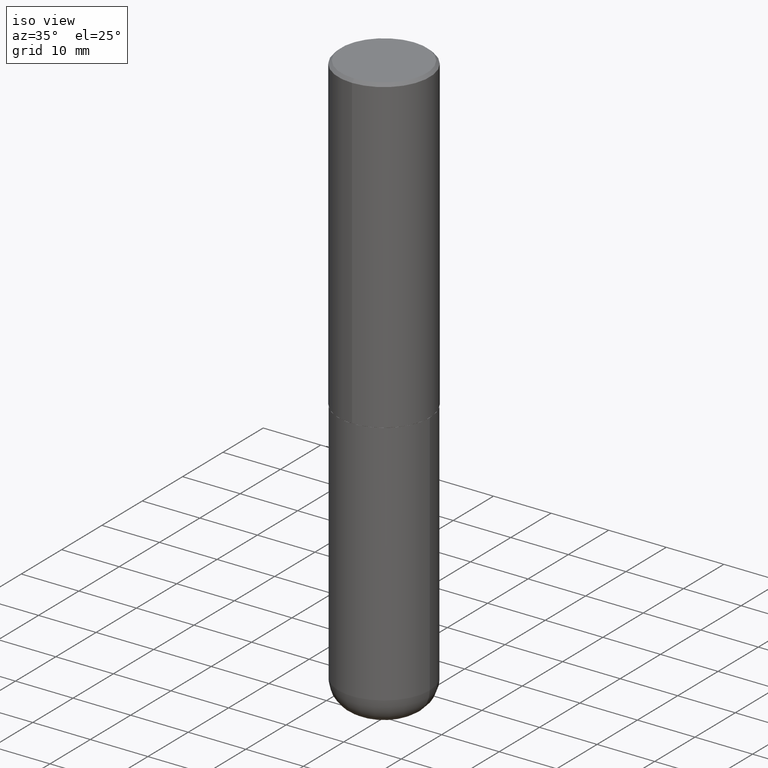
[diagram: clean part render]
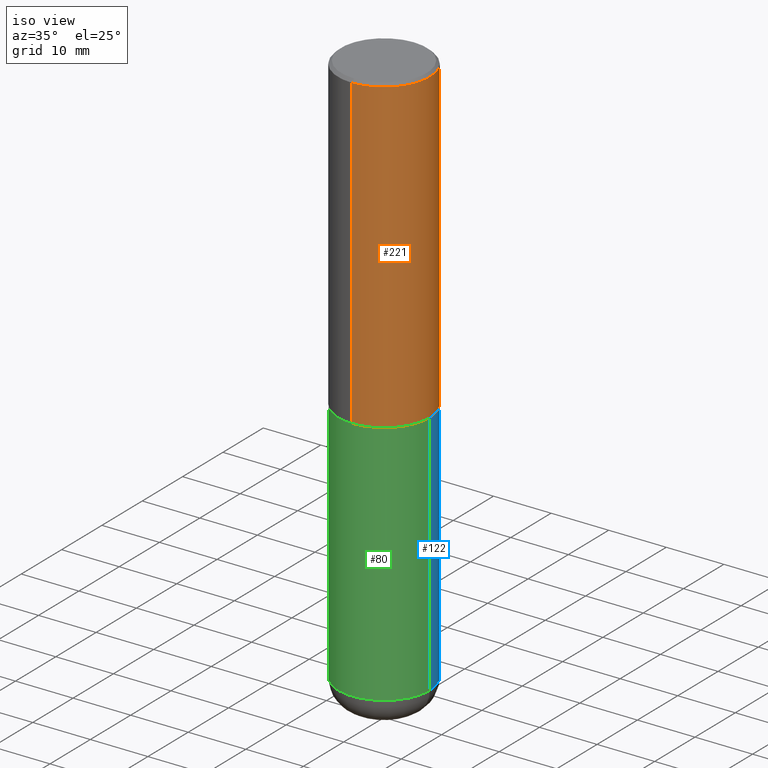
[diagram: same view with three faces highlighted in distinct colors, each labeled with its STEP entity id]
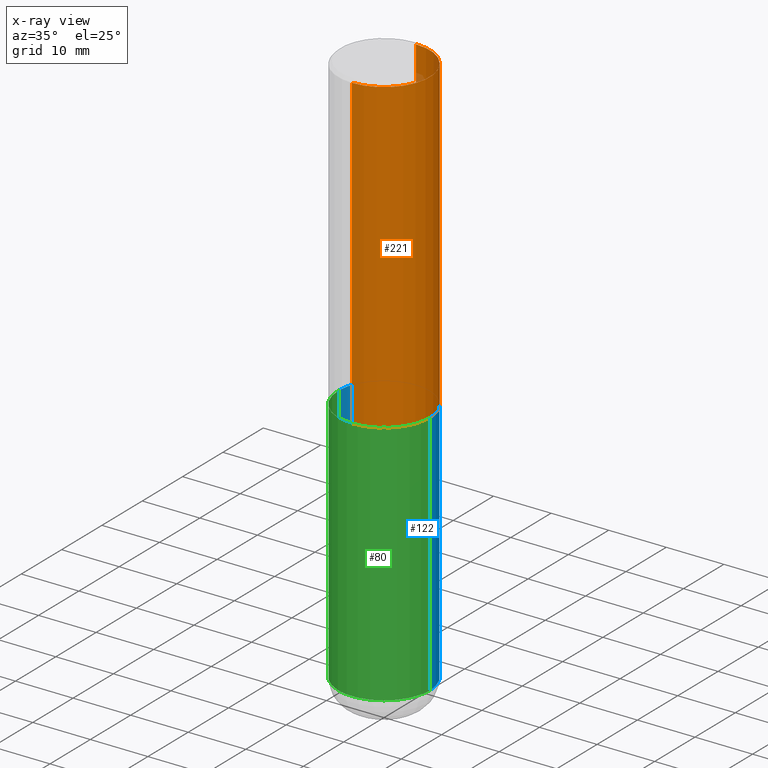
[diagram: x-ray of the same camera — body ghosted, the three highlighted faces saturated]
A machine part, iso view with three faces highlighted in distinct colors.
The next image is the same camera in x-ray (body ghosted, the three faces saturated) — at least one of them is partly hidden behind the body in this view.
Their STEP definitions:

[orange] entity #221 — the highlighted cylindrical surface (partial cylindrical patch) has radius 7.9375 mm, axis along (-0, 0, 1).
#9 = DIRECTION ( 'NONE',  ( -6.982962677686265133E-15, -1.000000000000000000, 3.492364022149836358E-15 ) ) ;
#15 = ORIENTED_EDGE ( 'NONE', *, *, #380, .F. ) ;
#20 = CARTESIAN_POINT ( 'NONE',  ( -2.143905624303602824E-15, -0.3125000000000000555, -0.01999999999999897693 ) ) ;
#39 = FACE_OUTER_BOUND ( 'NONE', #64, .T. ) ;
#60 = EDGE_CURVE ( 'NONE', #394, #68, #362, .T. ) ;
#63 = CIRCLE ( 'NONE', #128, 0.3125000000000000000 ) ;
#64 = EDGE_LOOP ( 'NONE', ( #65, #274, #15, #247 ) ) ;
#65 = ORIENTED_EDGE ( 'NONE', *, *, #134, .T. ) ;
#66 = DIRECTION ( 'NONE',  ( -6.982962677686265133E-15, -1.000000000000000000, 3.496765431890256920E-15 ) ) ;
#68 = VERTEX_POINT ( 'NONE', #20 ) ;
#69 = CARTESIAN_POINT ( 'NONE',  ( 2.220446049250340297E-15, 0.3124999999999928391, -2.124000000000000554 ) ) ;
#72 = DIRECTION ( 'NONE',  ( -2.444852431726452894E-29, 3.492364022149836358E-15, 1.000000000000000000 ) ) ;
#99 = DIRECTION ( 'NONE',  ( -2.444852431726452894E-29, 3.492364022149836358E-15, 1.000000000000000000 ) ) ;
#106 = CARTESIAN_POINT ( 'NONE',  ( 0.000000000000000000, 0.000000000000000000, 0.000000000000000000 ) ) ;
#127 = AXIS2_PLACEMENT_3D ( 'NONE', #129, #99, #219 ) ;
#128 = AXIS2_PLACEMENT_3D ( 'NONE', #161, #292, #66 ) ;
#129 = CARTESIAN_POINT ( 'NONE',  ( 5.192866564986985411E-29, -7.417781183046251262E-15, -2.123999999999999666 ) ) ;
#134 = EDGE_CURVE ( 'NONE', #394, #411, #242, .T. ) ;
#161 = CARTESIAN_POINT ( 'NONE',  ( 4.889704863452922148E-31, -6.984728044299695791E-17, -0.02000000000000006981 ) ) ;
#170 = LINE ( 'NONE', #270, #373 ) ;
#215 = VERTEX_POINT ( 'NONE', #232 ) ;
#219 = DIRECTION ( 'NONE',  ( -6.982962677686265922E-15, -1.000000000000000000, 3.496765431890253764E-15 ) ) ;
#221 = ADVANCED_FACE ( 'NONE', ( #39 ), #365, .T. ) ;
#226 = CARTESIAN_POINT ( 'NONE',  ( -2.182175836776908254E-15, -0.3125000000000077161, -2.123999999999998334 ) ) ;
#232 = CARTESIAN_POINT ( 'NONE',  ( 2.182175836776958741E-15, 0.3124999999999999445, -0.02000000000000116268 ) ) ;
#242 = CIRCLE ( 'NONE', #127, 0.3125000000000002776 ) ;
#247 = ORIENTED_EDGE ( 'NONE', *, *, #60, .F. ) ;
#251 = VECTOR ( 'NONE', #381, 39.37007874015748143 ) ;
#263 = EDGE_CURVE ( 'NONE', #411, #215, #170, .T. ) ;
#270 = CARTESIAN_POINT ( 'NONE',  ( 2.220446049250313475E-15, 0.3125000000000001665, -1.091363756921824478E-15 ) ) ;
#274 = ORIENTED_EDGE ( 'NONE', *, *, #263, .T. ) ;
#292 = DIRECTION ( 'NONE',  ( -2.444852431726452894E-29, 3.492364022149836358E-15, 1.000000000000000000 ) ) ;
#351 = CARTESIAN_POINT ( 'NONE',  ( -2.182175836776959136E-15, -0.3125000000000001665, 1.091363756921824478E-15 ) ) ;
#362 = LINE ( 'NONE', #351, #251 ) ;
#365 = CYLINDRICAL_SURFACE ( 'NONE', #389, 0.3125000000000001665 ) ;
#373 = VECTOR ( 'NONE', #398, 39.37007874015748143 ) ;
#380 = EDGE_CURVE ( 'NONE', #68, #215, #63, .T. ) ;
#381 = DIRECTION ( 'NONE',  ( -2.444852431726452614E-29, 3.492364022149836358E-15, 1.000000000000000000 ) ) ;
#389 = AXIS2_PLACEMENT_3D ( 'NONE', #106, #72, #9 ) ;
#394 = VERTEX_POINT ( 'NONE', #226 ) ;
#398 = DIRECTION ( 'NONE',  ( -2.444852431726452614E-29, 3.492364022149836358E-15, 1.000000000000000000 ) ) ;
#411 = VERTEX_POINT ( 'NONE', #69 ) ;

[blue] entity #122 — the highlighted cylindrical surface (partial cylindrical patch) has radius 7.9375 mm, axis along (-0, 0, 1).
#4 = AXIS2_PLACEMENT_3D ( 'NONE', #358, #258, #253 ) ;
#5 = EDGE_CURVE ( 'NONE', #287, #154, #342, .T. ) ;
#30 = DIRECTION ( 'NONE',  ( 1.000000000000000000, -6.982962677686269077E-15, 0.000000000000000000 ) ) ;
#33 = ORIENTED_EDGE ( 'NONE', *, *, #302, .F. ) ;
#52 = VECTOR ( 'NONE', #146, 39.37007874015748143 ) ;
#61 = DIRECTION ( 'NONE',  ( 1.000000000000000000, -6.982962677686266711E-15, 4.876176775795936353E-29 ) ) ;
#82 = CARTESIAN_POINT ( 'NONE',  ( 0.3125000000000000000, -9.601573681818640393E-15, -2.124999999999999556 ) ) ;
#98 = CARTESIAN_POINT ( 'NONE',  ( -0.3124999999999998890, -1.108209785174207265E-14, -3.810000000000000053 ) ) ;
#102 = EDGE_CURVE ( 'NONE', #383, #154, #405, .T. ) ;
#117 = CYLINDRICAL_SURFACE ( 'NONE', #309, 0.3125000000000000000 ) ;
#121 = DIRECTION ( 'NONE',  ( -2.445468806185136597E-29, 3.491481338843145583E-15, 1.000000000000000000 ) ) ;
#122 = ADVANCED_FACE ( 'NONE', ( #413 ), #117, .T. ) ;
#124 = DIRECTION ( 'NONE',  ( -2.445468806185136877E-29, 3.491481338843145188E-15, 1.000000000000000000 ) ) ;
#125 = EDGE_LOOP ( 'NONE', ( #278, #382, #196, #33 ) ) ;
#138 = EDGE_CURVE ( 'NONE', #173, #383, #141, .T. ) ;
#141 = CIRCLE ( 'NONE', #379, 0.3125000000000000000 ) ;
#146 = DIRECTION ( 'NONE',  ( -2.445468806185136877E-29, 3.491481338843145188E-15, 1.000000000000000000 ) ) ;
#154 = VERTEX_POINT ( 'NONE', #293 ) ;
#173 = VERTEX_POINT ( 'NONE', #252 ) ;
#174 = LINE ( 'NONE', #308, #52 ) ;
#185 = CARTESIAN_POINT ( 'NONE',  ( -0.3125000000000000000, 2.220446049250313081E-15, -1.537167215704658232E-29 ) ) ;
#196 = ORIENTED_EDGE ( 'NONE', *, *, #5, .F. ) ;
#218 = CARTESIAN_POINT ( 'NONE',  ( 9.317236151565370389E-29, -1.330254390099238573E-14, -3.810000000000000053 ) ) ;
#228 = VECTOR ( 'NONE', #124, 39.37007874015748143 ) ;
#252 = CARTESIAN_POINT ( 'NONE',  ( 0.3124999999999998890, -1.548471973776934408E-14, -3.810000000000000053 ) ) ;
#253 = DIRECTION ( 'NONE',  ( 1.000000000000000000, -6.982962677686265133E-15, 0.000000000000000000 ) ) ;
#258 = DIRECTION ( 'NONE',  ( -2.445468806185136597E-29, 3.491481338843145583E-15, 1.000000000000000000 ) ) ;
#278 = ORIENTED_EDGE ( 'NONE', *, *, #138, .T. ) ;
#287 = VERTEX_POINT ( 'NONE', #82 ) ;
#293 = CARTESIAN_POINT ( 'NONE',  ( -0.3125000000000000000, -8.140524823766720019E-15, -2.124999999999999556 ) ) ;
#302 = EDGE_CURVE ( 'NONE', #173, #287, #174, .T. ) ;
#308 = CARTESIAN_POINT ( 'NONE',  ( 0.3125000000000000000, -2.182175836776958347E-15, 1.523805242436230075E-29 ) ) ;
#309 = AXIS2_PLACEMENT_3D ( 'NONE', #378, #387, #61 ) ;
#342 = CIRCLE ( 'NONE', #4, 0.3125000000000000000 ) ;
#358 = CARTESIAN_POINT ( 'NONE',  ( 5.196621213143414147E-29, -7.419397845041682046E-15, -2.124999999999999556 ) ) ;
#378 = CARTESIAN_POINT ( 'NONE',  ( 0.000000000000000000, 0.000000000000000000, 0.000000000000000000 ) ) ;
#379 = AXIS2_PLACEMENT_3D ( 'NONE', #218, #121, #30 ) ;
#382 = ORIENTED_EDGE ( 'NONE', *, *, #102, .T. ) ;
#383 = VERTEX_POINT ( 'NONE', #98 ) ;
#387 = DIRECTION ( 'NONE',  ( -2.445468806185136597E-29, 3.491481338843145583E-15, 1.000000000000000000 ) ) ;
#405 = LINE ( 'NONE', #185, #228 ) ;
#413 = FACE_OUTER_BOUND ( 'NONE', #125, .T. ) ;

[green] entity #80 — the highlighted cylindrical surface (partial cylindrical patch) has radius 7.9375 mm, axis along (-0, 0, 1).
#2 = EDGE_CURVE ( 'NONE', #383, #173, #401, .T. ) ;
#13 = CIRCLE ( 'NONE', #105, 0.3125000000000000000 ) ;
#27 = DIRECTION ( 'NONE',  ( -2.445468806185136597E-29, 3.491481338843145583E-15, 1.000000000000000000 ) ) ;
#34 = ORIENTED_EDGE ( 'NONE', *, *, #2, .T. ) ;
#52 = VECTOR ( 'NONE', #146, 39.37007874015748143 ) ;
#58 = DIRECTION ( 'NONE',  ( -2.445468806185136597E-29, 3.491481338843145583E-15, 1.000000000000000000 ) ) ;
#80 = ADVANCED_FACE ( 'NONE', ( #316 ), #295, .T. ) ;
#81 = ORIENTED_EDGE ( 'NONE', *, *, #102, .F. ) ;
#82 = CARTESIAN_POINT ( 'NONE',  ( 0.3125000000000000000, -9.601573681818640393E-15, -2.124999999999999556 ) ) ;
#98 = CARTESIAN_POINT ( 'NONE',  ( -0.3124999999999998890, -1.108209785174207265E-14, -3.810000000000000053 ) ) ;
#102 = EDGE_CURVE ( 'NONE', #383, #154, #405, .T. ) ;
#105 = AXIS2_PLACEMENT_3D ( 'NONE', #289, #288, #415 ) ;
#124 = DIRECTION ( 'NONE',  ( -2.445468806185136877E-29, 3.491481338843145188E-15, 1.000000000000000000 ) ) ;
#146 = DIRECTION ( 'NONE',  ( -2.445468806185136877E-29, 3.491481338843145188E-15, 1.000000000000000000 ) ) ;
#154 = VERTEX_POINT ( 'NONE', #293 ) ;
#173 = VERTEX_POINT ( 'NONE', #252 ) ;
#174 = LINE ( 'NONE', #308, #52 ) ;
#185 = CARTESIAN_POINT ( 'NONE',  ( -0.3125000000000000000, 2.220446049250313081E-15, -1.537167215704658232E-29 ) ) ;
#192 = CARTESIAN_POINT ( 'NONE',  ( 9.317236151565370389E-29, -1.330254390099238573E-14, -3.810000000000000053 ) ) ;
#227 = DIRECTION ( 'NONE',  ( 1.000000000000000000, -6.982962677686266711E-15, 4.876176775795936353E-29 ) ) ;
#228 = VECTOR ( 'NONE', #124, 39.37007874015748143 ) ;
#249 = EDGE_LOOP ( 'NONE', ( #81, #34, #377, #346 ) ) ;
#252 = CARTESIAN_POINT ( 'NONE',  ( 0.3124999999999998890, -1.548471973776934408E-14, -3.810000000000000053 ) ) ;
#281 = CARTESIAN_POINT ( 'NONE',  ( 0.000000000000000000, 0.000000000000000000, 0.000000000000000000 ) ) ;
#284 = AXIS2_PLACEMENT_3D ( 'NONE', #192, #58, #349 ) ;
#287 = VERTEX_POINT ( 'NONE', #82 ) ;
#288 = DIRECTION ( 'NONE',  ( -2.445468806185136597E-29, 3.491481338843145583E-15, 1.000000000000000000 ) ) ;
#289 = CARTESIAN_POINT ( 'NONE',  ( 5.196621213143414147E-29, -7.419397845041682046E-15, -2.124999999999999556 ) ) ;
#293 = CARTESIAN_POINT ( 'NONE',  ( -0.3125000000000000000, -8.140524823766720019E-15, -2.124999999999999556 ) ) ;
#295 = CYLINDRICAL_SURFACE ( 'NONE', #324, 0.3125000000000000000 ) ;
#302 = EDGE_CURVE ( 'NONE', #173, #287, #174, .T. ) ;
#308 = CARTESIAN_POINT ( 'NONE',  ( 0.3125000000000000000, -2.182175836776958347E-15, 1.523805242436230075E-29 ) ) ;
#316 = FACE_OUTER_BOUND ( 'NONE', #249, .T. ) ;
#324 = AXIS2_PLACEMENT_3D ( 'NONE', #281, #27, #227 ) ;
#346 = ORIENTED_EDGE ( 'NONE', *, *, #367, .F. ) ;
#349 = DIRECTION ( 'NONE',  ( 1.000000000000000000, -6.982962677686269077E-15, 0.000000000000000000 ) ) ;
#367 = EDGE_CURVE ( 'NONE', #154, #287, #13, .T. ) ;
#377 = ORIENTED_EDGE ( 'NONE', *, *, #302, .T. ) ;
#383 = VERTEX_POINT ( 'NONE', #98 ) ;
#401 = CIRCLE ( 'NONE', #284, 0.3125000000000000000 ) ;
#405 = LINE ( 'NONE', #185, #228 ) ;
#415 = DIRECTION ( 'NONE',  ( 1.000000000000000000, -6.982962677686265133E-15, 0.000000000000000000 ) ) ;